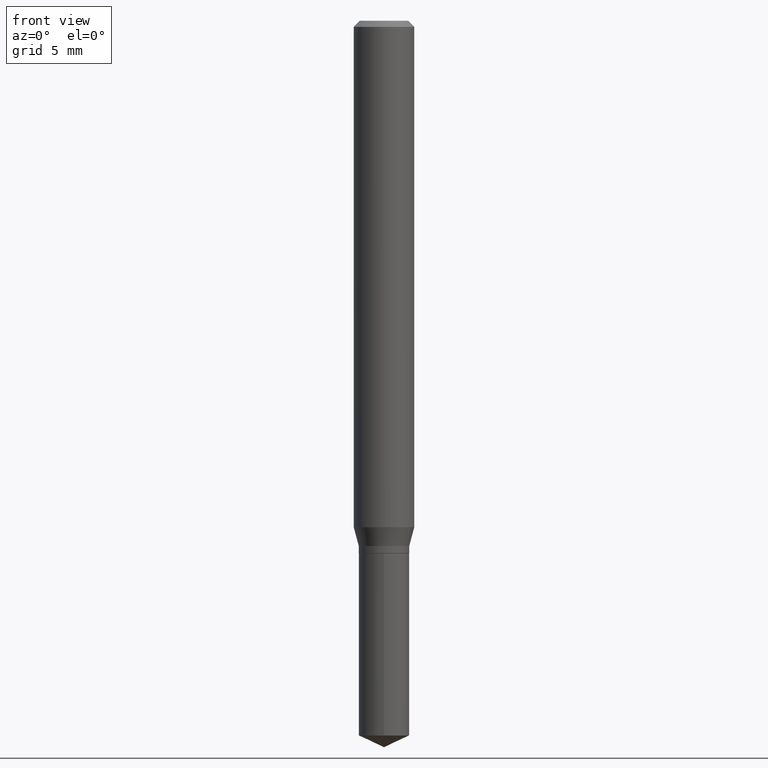
[diagram: clean part render]
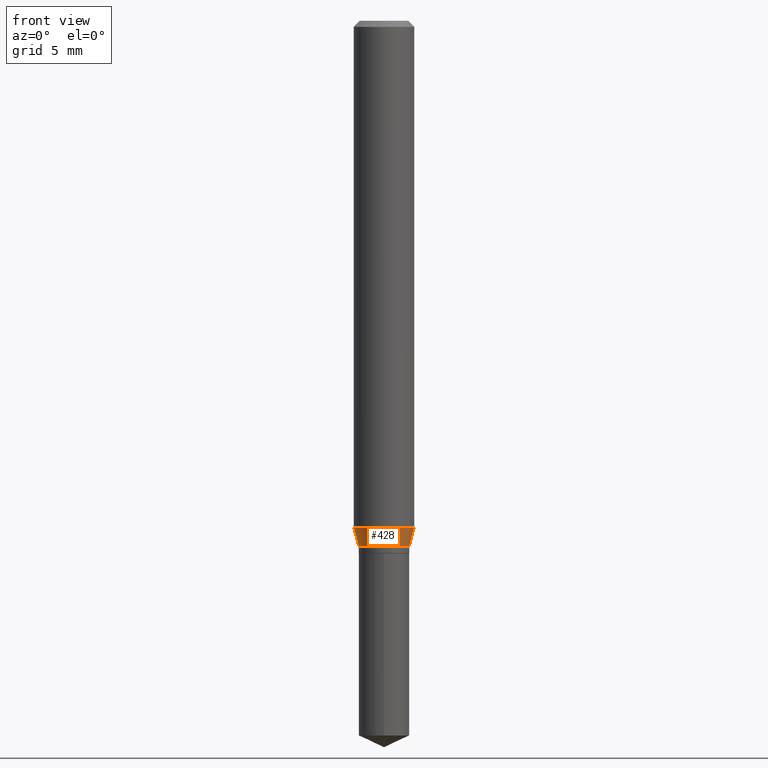
[diagram: same view with one face highlighted and labeled with its STEP entity id]
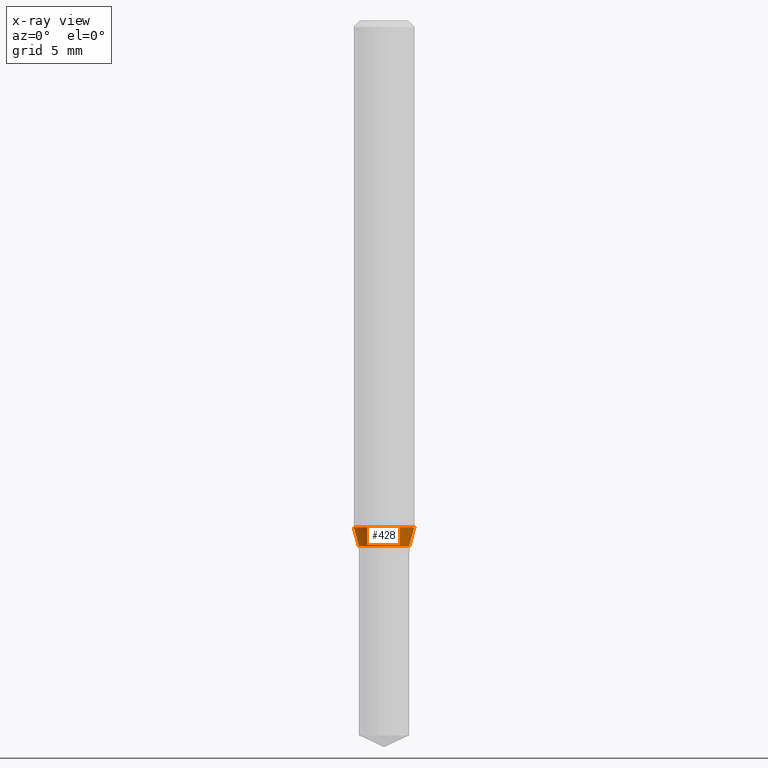
[diagram: x-ray of the same camera — body ghosted, the highlighted face saturated]
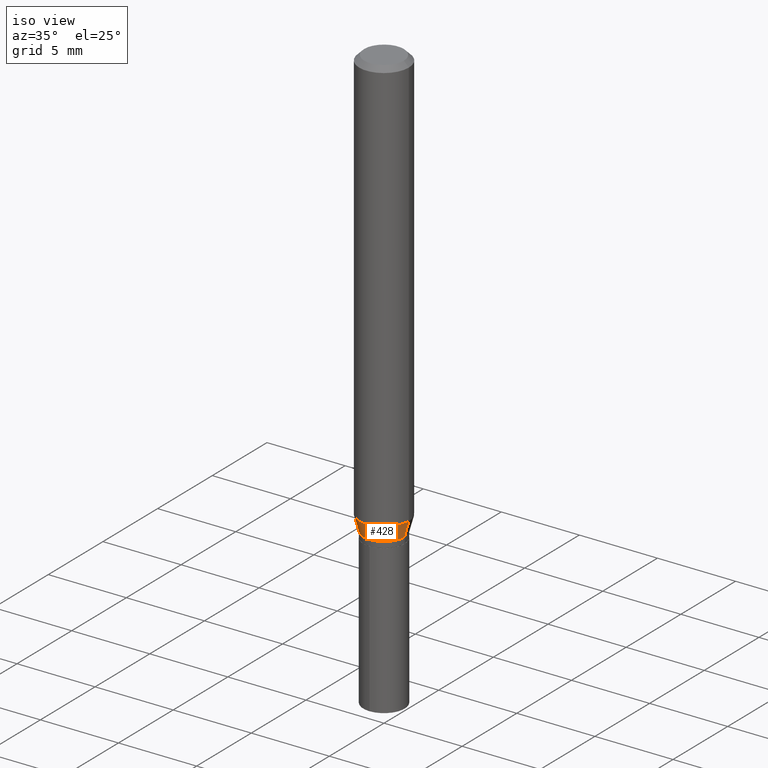
[diagram: same view with one face highlighted and labeled with its STEP entity id]
A machine part, front view. The second image highlights one B-rep face of the part: STEP entity #428.
The next image is the same camera in x-ray: the body ghosted, the highlighted face saturated — about 0% of this face is hidden behind the body in this view.
A second angle (iso view) of the same face is appended — the face is thin or edge-on in the first view.
In plain terms, the highlighted conical surface has half-angle 15 deg.
Its self-contained STEP definition (entity closure, byte-faithful):
#12 = CARTESIAN_POINT ( 'NONE',  ( -0.05215000000000000191, -3.415614327142614760E-15, -1.084400000000000031 ) ) ;
#34 = DIRECTION ( 'NONE',  ( -2.445468806185136597E-29, 3.491481338843145583E-15, 1.000000000000000000 ) ) ;
#35 = CARTESIAN_POINT ( 'NONE',  ( 2.651866373427162025E-29, -3.786162363841507612E-15, -1.084400000000000031 ) ) ;
#37 = DIRECTION ( 'NONE',  ( 1.000000000000000000, -6.982962677686268288E-15, 0.000000000000000000 ) ) ;
#57 = ORIENTED_EDGE ( 'NONE', *, *, #178, .F. ) ;
#64 = DIRECTION ( 'NONE',  ( 0.2588190451025216277, 1.565188264969619995E-15, 0.9659258262890679791 ) ) ;
#72 = DIRECTION ( 'NONE',  ( 1.000000000000000000, -6.982962677686268288E-15, 0.000000000000000000 ) ) ;
#76 = DIRECTION ( 'NONE',  ( -2.445468806185136597E-29, 3.491481338843145583E-15, 1.000000000000000000 ) ) ;
#81 = CARTESIAN_POINT ( 'NONE',  ( 2.557405920255531666E-29, -3.651297871326509428E-15, -1.045773274141661879 ) ) ;
#91 = DIRECTION ( 'NONE',  ( -2.445468806185136597E-29, 3.491481338843145583E-15, 1.000000000000000000 ) ) ;
#98 = LINE ( 'NONE', #215, #379 ) ;
#106 = CONICAL_SURFACE ( 'NONE', #435, 0.05215000000000000191, 0.2617993877991502960 ) ;
#110 = EDGE_CURVE ( 'NONE', #251, #352, #418, .T. ) ;
#126 = DIRECTION ( 'NONE',  ( -0.2588190451025216277, 5.211531920934551831E-15, 0.9659258262890679791 ) ) ;
#137 = CARTESIAN_POINT ( 'NONE',  ( -0.05215000000000000191, -3.441975011250880253E-15, -1.084400000000000031 ) ) ;
#178 = EDGE_CURVE ( 'NONE', #357, #251, #351, .T. ) ;
#205 = ORIENTED_EDGE ( 'NONE', *, *, #110, .F. ) ;
#215 = CARTESIAN_POINT ( 'NONE',  ( 0.05215000000000000191, -4.150323867482845879E-15, -1.084400000000000031 ) ) ;
#235 = AXIS2_PLACEMENT_3D ( 'NONE', #454, #76, #37 ) ;
#251 = VERTEX_POINT ( 'NONE', #332 ) ;
#264 = EDGE_CURVE ( 'NONE', #463, #352, #98, .T. ) ;
#268 = CARTESIAN_POINT ( 'NONE',  ( 0.05215000000000000191, -4.150323867482845879E-15, -1.084400000000000031 ) ) ;
#271 = AXIS2_PLACEMENT_3D ( 'NONE', #81, #91, #359 ) ;
#308 = EDGE_LOOP ( 'NONE', ( #57, #318, #401, #205 ) ) ;
#318 = ORIENTED_EDGE ( 'NONE', *, *, #446, .T. ) ;
#332 = CARTESIAN_POINT ( 'NONE',  ( -0.06250000000000012490, -3.207208661476446023E-15, -1.045773274141661879 ) ) ;
#351 = LINE ( 'NONE', #12, #434 ) ;
#352 = VERTEX_POINT ( 'NONE', #370 ) ;
#357 = VERTEX_POINT ( 'NONE', #137 ) ;
#359 = DIRECTION ( 'NONE',  ( 1.000000000000000000, -6.982962677686264344E-15, 0.000000000000000000 ) ) ;
#370 = CARTESIAN_POINT ( 'NONE',  ( 0.06250000000000012490, -4.087733038681901886E-15, -1.045773274141661879 ) ) ;
#373 = CIRCLE ( 'NONE', #235, 0.05215000000000000191 ) ;
#379 = VECTOR ( 'NONE', #64, 39.37007874015748143 ) ;
#401 = ORIENTED_EDGE ( 'NONE', *, *, #264, .T. ) ;
#418 = CIRCLE ( 'NONE', #271, 0.06250000000000012490 ) ;
#428 = ADVANCED_FACE ( 'NONE', ( #490 ), #106, .T. ) ;
#434 = VECTOR ( 'NONE', #126, 39.37007874015748143 ) ;
#435 = AXIS2_PLACEMENT_3D ( 'NONE', #35, #34, #72 ) ;
#446 = EDGE_CURVE ( 'NONE', #357, #463, #373, .T. ) ;
#454 = CARTESIAN_POINT ( 'NONE',  ( 2.651866373427162025E-29, -3.786162363841507612E-15, -1.084400000000000031 ) ) ;
#463 = VERTEX_POINT ( 'NONE', #268 ) ;
#490 = FACE_OUTER_BOUND ( 'NONE', #308, .T. ) ;